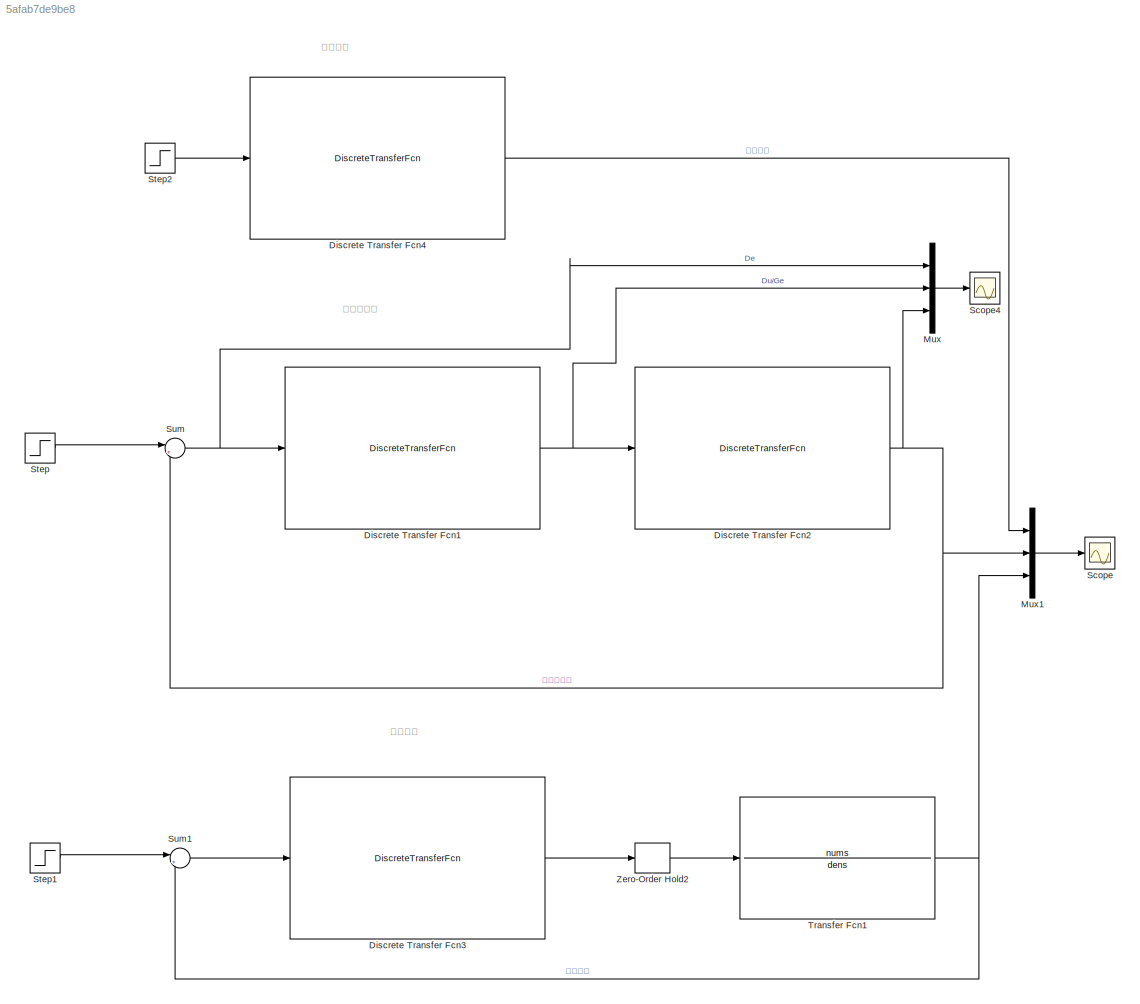
MODEL slx_5afab7de9be8
KIND model
CONFIG AbsTol = auto
CONFIG EnableMultiTasking = off
CONFIG FixedStep = auto
CONFIG MaxStep = auto
CONFIG MinStep = auto
CONFIG RelTol = 1e-3
CONFIG SampleTimeConstraint = Unconstrained
CONFIG Solver = VariableStepAuto
CONFIG SolverName = VariableStepAuto
CONFIG StartTime = 0.0
CONFIG StopTime = 1
BLOCK [DiscreteTransferFcn] Discrete Transfer Fcn1
  Denominator = dend
  InputPortMap = u0
  Numerator = numd
  Ports = [1, 1]
  SampleTime = 0.1
BLOCK [DiscreteTransferFcn] Discrete Transfer Fcn2
  Denominator = deng
  InputPortMap = u0
  Numerator = numg
  Ports = [1, 1]
  SampleTime = 0.1
BLOCK [DiscreteTransferFcn] Discrete Transfer Fcn3
  Denominator = dend
  InputPortMap = u0
  Numerator = numd
  Ports = [1, 1]
  SampleTime = 0.1
BLOCK [DiscreteTransferFcn] Discrete Transfer Fcn4
  Denominator = [1 0]
  InputPortMap = u0
  Numerator = 1
  Ports = [1, 1]
  SampleTime = 0.1
BLOCK [Mux] Mux
  DisplayOption = bar
  Inputs = 3
  Ports = [3, 1]
BLOCK [Mux] Mux1
  DisplayOption = bar
  Inputs = 3
  Ports = [3, 1]
BLOCK [Scope] Scope
  NumInputPorts = 1
  Ports = [1]
  ScopeSpecificationString = Simulink.scopes.TimeScopeBlockCfg('CurrentConfiguration', extmgr.ConfigurationSet(extmgr.Configuration('Core','General UI',true),extmgr.Configuration('Core','Source UI',true),extmgr.Configuration('Sources','WiredSimulink',true),extmgr.Configuration('Visuals','Time Domain',true,'SerializedDisplays',{struct('MinYLimReal','-0.12592','MaxYLimReal','1.13324','YLabelReal','','MinYLimMag','0.00000','MaxY...<+1446ch>
BLOCK [Scope] Scope4
  NumInputPorts = 1
  Ports = [1]
  ScopeSpecificationString = Simulink.scopes.TimeScopeBlockCfg('CurrentConfiguration', extmgr.ConfigurationSet(extmgr.Configuration('Core','General UI',true),extmgr.Configuration('Core','Source UI',true),extmgr.Configuration('Sources','WiredSimulink',true,'DataLoggingVariableName','ScopeData4'),extmgr.Configuration('Visuals','Time Domain',true,'SerializedDisplays',{struct('MinYLimReal','-0.125','MaxYLimReal','1.125','YLabelRe...<+1747ch>
BLOCK [Step] Step
  SampleTime = 0
  Time = 0.5
BLOCK [Step] Step1
  SampleTime = 0
  Time = 0.5
BLOCK [Step] Step2
  SampleTime = 0
  Time = 0.5
BLOCK [Sum] Sum
  IconShape = round
  InputSameDT = off
  Inputs = |+-
  OutDataTypeStr = Inherit: Inherit via internal rule
  Ports = [2, 1]
  SaturateOnIntegerOverflow = off
BLOCK [Sum] Sum1
  IconShape = round
  InputSameDT = off
  Inputs = |+-
  OutDataTypeStr = Inherit: Inherit via internal rule
  Ports = [2, 1]
  SaturateOnIntegerOverflow = off
BLOCK [TransferFcn] Transfer Fcn1
  Denominator = dens
  Numerator = nums
BLOCK [ZeroOrderHold] Zero-Order Hold2
  SampleTime = 0.1
ANNOTATION (root): 实际模型
ANNOTATION (root): 理想模型
ANNOTATION (root): 离散化模型
NET Discrete Transfer Fcn1:1 -> Discrete Transfer Fcn2:1, Mux:2
NET Discrete Transfer Fcn2:1 -> Mux1:2, Mux:3, Sum:2
LINE Discrete Transfer Fcn3:1 -> Zero-Order Hold2:1
LINE Discrete Transfer Fcn4:1 -> Mux1:1
LINE Mux1:1 -> Scope:1
LINE Mux:1 -> Scope4:1
LINE Step1:1 -> Sum1:1
LINE Step2:1 -> Discrete Transfer Fcn4:1
LINE Step:1 -> Sum:1
LINE Sum1:1 -> Discrete Transfer Fcn3:1
NET Sum:1 -> Discrete Transfer Fcn1:1, Mux:1
NET Transfer Fcn1:1 -> Mux1:3, Sum1:2
LINE Zero-Order Hold2:1 -> Transfer Fcn1:1
note: NET lines group one-source signal fan-out (src -> all destinations, sorted); 1:1 wires keep LINE
